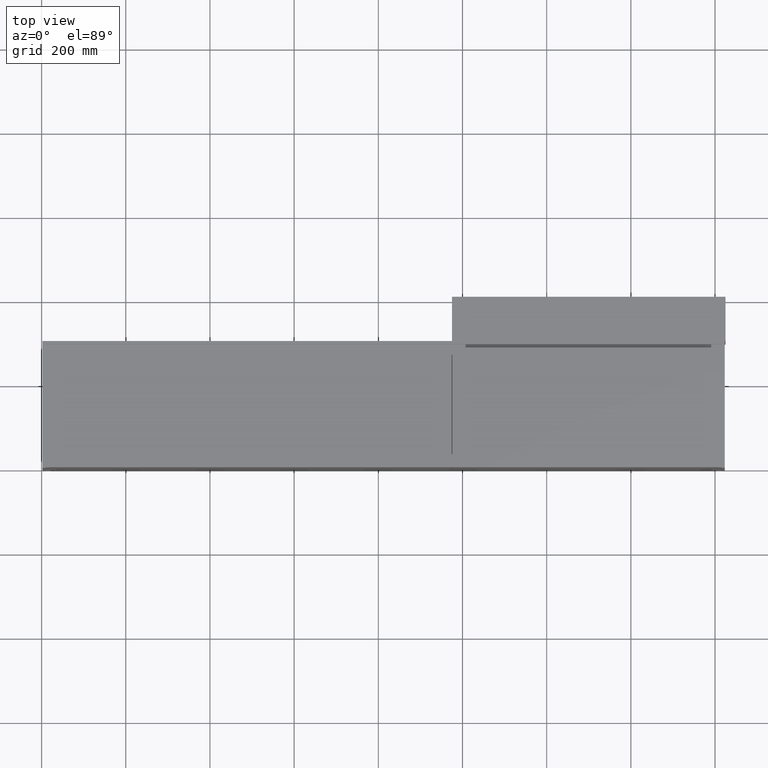
[diagram: clean part render]
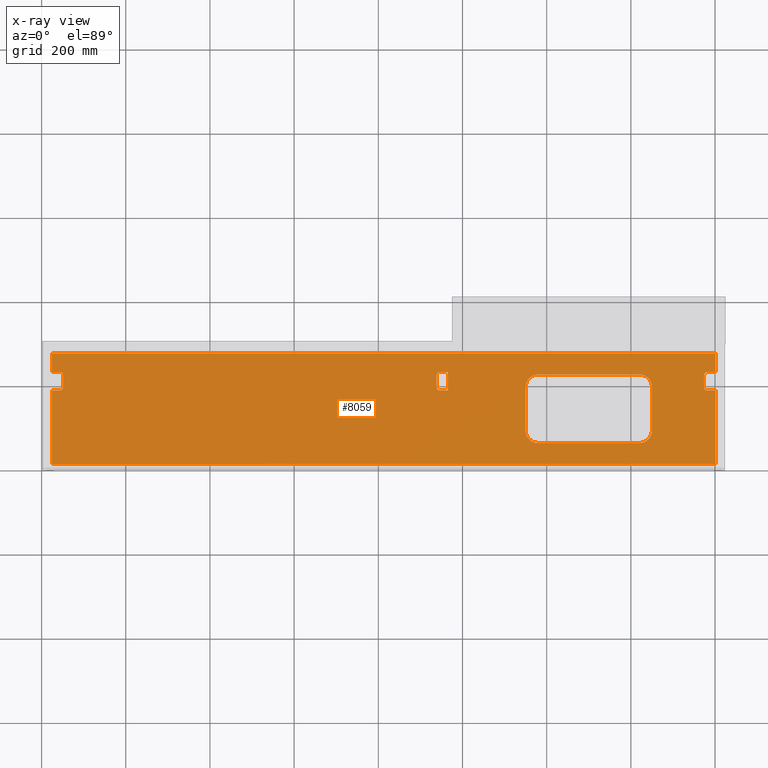
[diagram: x-ray — body ghosted, one internal face saturated and labeled with its STEP entity id]
A machine part, top view, then the same camera in x-ray: the body is ghosted and one INTERNAL B-rep face — a face not visible from any outside direction — is saturated and labeled: STEP entity #8059.
In plain terms, the highlighted planar face has unit normal (0, 0, -1).
Its self-contained STEP definition (entity closure, byte-faithful):
#95 = EDGE_CURVE ( 'NONE', #16124, #13416, #5217, .T. ) ;
#113 = VECTOR ( 'NONE', #11006, 1000.000000000000000 ) ;
#144 = EDGE_CURVE ( 'NONE', #7243, #5850, #11736, .T. ) ;
#260 = DIRECTION ( 'NONE',  ( 0.0000000000000000000, -1.000000000000000000, 0.0000000000000000000 ) ) ;
#395 = ORIENTED_EDGE ( 'NONE', *, *, #2169, .F. ) ;
#428 = EDGE_CURVE ( 'NONE', #7765, #14727, #7623, .T. ) ;
#462 = EDGE_CURVE ( 'NONE', #4347, #5850, #9162, .T. ) ;
#515 = DIRECTION ( 'NONE',  ( -1.000000000000000000, 0.0000000000000000000, 0.0000000000000000000 ) ) ;
#527 = CARTESIAN_POINT ( 'NONE',  ( 24.00000000000002132, 15.00000000000001421, -440.4999999999998295 ) ) ;
#577 = ORIENTED_EDGE ( 'NONE', *, *, #13520, .F. ) ;
#643 = EDGE_CURVE ( 'NONE', #14174, #15036, #2887, .T. ) ;
#682 = VERTEX_POINT ( 'NONE', #2091 ) ;
#734 = CARTESIAN_POINT ( 'NONE',  ( 1450.000000000000227, 95.00000000000000000, -440.4999999999998295 ) ) ;
#762 = CARTESIAN_POINT ( 'NONE',  ( 946.5000000000002274, 197.9999999999999432, -440.4999999999998295 ) ) ;
#771 = DIRECTION ( 'NONE',  ( -0.0000000000000000000, -1.000000000000000000, -0.0000000000000000000 ) ) ;
#907 = ORIENTED_EDGE ( 'NONE', *, *, #4710, .F. ) ;
#986 = ORIENTED_EDGE ( 'NONE', *, *, #15553, .F. ) ;
#1010 = LINE ( 'NONE', #6008, #113 ) ;
#1030 = ORIENTED_EDGE ( 'NONE', *, *, #12616, .F. ) ;
#1055 = DIRECTION ( 'NONE',  ( -1.000000000000000000, 0.0000000000000000000, -0.0000000000000000000 ) ) ;
#1277 = VECTOR ( 'NONE', #1740, 1000.000000000000000 ) ;
#1405 = VECTOR ( 'NONE', #260, 1000.000000000000000 ) ;
#1430 = VERTEX_POINT ( 'NONE', #9230 ) ;
#1539 = CARTESIAN_POINT ( 'NONE',  ( 24.00000000000002132, 278.0000000000000000, -440.4999999999998295 ) ) ;
#1546 = DIRECTION ( 'NONE',  ( -1.000000000000000000, 0.0000000000000000000, 0.0000000000000000000 ) ) ;
#1572 = CARTESIAN_POINT ( 'NONE',  ( 1582.000000000000000, 198.0000000000000568, -440.4999999999998295 ) ) ;
#1575 = CARTESIAN_POINT ( 'NONE',  ( 965.5000000000002274, 189.9999999999999432, -440.4999999999998295 ) ) ;
#1677 = ORIENTED_EDGE ( 'NONE', *, *, #144, .T. ) ;
#1727 = CIRCLE ( 'NONE', #10890, 30.00000000000002842 ) ;
#1740 = DIRECTION ( 'NONE',  ( -2.155772863349817962E-15, 1.000000000000000000, 0.0000000000000000000 ) ) ;
#1756 = EDGE_CURVE ( 'NONE', #2817, #682, #4958, .T. ) ;
#1764 = CARTESIAN_POINT ( 'NONE',  ( 1601.000000000000000, 234.0000000000000284, -440.4999999999998295 ) ) ;
#1866 = ORIENTED_EDGE ( 'NONE', *, *, #5435, .F. ) ;
#1965 = VERTEX_POINT ( 'NONE', #6912 ) ;
#2091 = CARTESIAN_POINT ( 'NONE',  ( 42.99999999999992895, 190.0000000000000568, -440.4999999999998295 ) ) ;
#2122 = EDGE_CURVE ( 'NONE', #2490, #14174, #15380, .T. ) ;
#2163 = VECTOR ( 'NONE', #3712, 1000.000000000000000 ) ;
#2169 = EDGE_CURVE ( 'NONE', #13436, #1965, #9475, .T. ) ;
#2175 = CARTESIAN_POINT ( 'NONE',  ( 42.99999999999992895, 198.0000000000000568, -440.4999999999998295 ) ) ;
#2178 = DIRECTION ( 'NONE',  ( -1.000000000000000000, -1.110223024625155436E-14, 0.0000000000000000000 ) ) ;
#2231 = CIRCLE ( 'NONE', #11371, 8.000000000000007105 ) ;
#2281 = DIRECTION ( 'NONE',  ( -0.0000000000000000000, -0.0000000000000000000, 1.000000000000000000 ) ) ;
#2290 = PLANE ( 'NONE',  #11293 ) ;
#2371 = DIRECTION ( 'NONE',  ( -1.000000000000000000, 0.0000000000000000000, 0.0000000000000000000 ) ) ;
#2411 = CARTESIAN_POINT ( 'NONE',  ( 1601.000000000000000, 234.0000000000000284, -440.4999999999998295 ) ) ;
#2490 = VERTEX_POINT ( 'NONE', #15521 ) ;
#2494 = LINE ( 'NONE', #7477, #5717 ) ;
#2524 = CARTESIAN_POINT ( 'NONE',  ( 24.00000000000002132, 15.00000000000001421, -440.4999999999998295 ) ) ;
#2751 = VECTOR ( 'NONE', #13452, 1000.000000000000000 ) ;
#2766 = CIRCLE ( 'NONE', #11907, 8.000000000000014211 ) ;
#2817 = VERTEX_POINT ( 'NONE', #4042 ) ;
#2887 = CIRCLE ( 'NONE', #8353, 30.00000000000002842 ) ;
#2952 = DIRECTION ( 'NONE',  ( -0.0000000000000000000, -1.000000000000000000, -0.0000000000000000000 ) ) ;
#2994 = LINE ( 'NONE', #7979, #15020 ) ;
#3027 = EDGE_CURVE ( 'NONE', #12477, #14032, #4213, .T. ) ;
#3047 = CARTESIAN_POINT ( 'NONE',  ( 1150.000000000000000, 95.00000000000004263, -440.4999999999998295 ) ) ;
#3068 = CARTESIAN_POINT ( 'NONE',  ( 1601.000000000000000, 15.00000000000001421, -440.4999999999998295 ) ) ;
#3136 = AXIS2_PLACEMENT_3D ( 'NONE', #5355, #10351, #15353 ) ;
#3181 = VERTEX_POINT ( 'NONE', #9273 ) ;
#3246 = DIRECTION ( 'NONE',  ( -0.0000000000000000000, -0.0000000000000000000, 1.000000000000000000 ) ) ;
#3254 = DIRECTION ( 'NONE',  ( 0.0000000000000000000, -1.000000000000000000, 0.0000000000000000000 ) ) ;
#3268 = VECTOR ( 'NONE', #9911, 1000.000000000000000 ) ;
#3324 = AXIS2_PLACEMENT_3D ( 'NONE', #13502, #2281, #7268 ) ;
#3363 = CARTESIAN_POINT ( 'NONE',  ( 1601.000000000000000, 1856.081164683669158, -440.4999999999998295 ) ) ;
#3463 = LINE ( 'NONE', #8449, #2751 ) ;
#3480 = CARTESIAN_POINT ( 'NONE',  ( 965.5000000000002274, 233.9999999999999432, -440.4999999999998295 ) ) ;
#3521 = FACE_BOUND ( 'NONE', #6159, .T. ) ;
#3712 = DIRECTION ( 'NONE',  ( -1.000000000000000000, 1.156482317317872465E-16, 0.0000000000000000000 ) ) ;
#4013 = EDGE_LOOP ( 'NONE', ( #8005, #11624, #907, #577, #5200, #7145, #11576, #8126 ) ) ;
#4022 = LINE ( 'NONE', #9004, #9392 ) ;
#4042 = CARTESIAN_POINT ( 'NONE',  ( 24.00000000000002132, 190.0000000000000568, -440.4999999999998295 ) ) ;
#4045 = VERTEX_POINT ( 'NONE', #2411 ) ;
#4077 = EDGE_LOOP ( 'NONE', ( #9221, #1030, #10611, #10472, #4734, #1866, #11704, #986, #10651, #10281, #13462, #1677, #9439, #4311, #12318, #4467 ) ) ;
#4162 = CARTESIAN_POINT ( 'NONE',  ( 1420.000000000000000, 65.00000000000000000, -440.4999999999998295 ) ) ;
#4213 = CIRCLE ( 'NONE', #11262, 8.000000000000007105 ) ;
#4290 = ORIENTED_EDGE ( 'NONE', *, *, #8583, .F. ) ;
#4311 = ORIENTED_EDGE ( 'NONE', *, *, #12157, .F. ) ;
#4347 = VERTEX_POINT ( 'NONE', #8342 ) ;
#4467 = ORIENTED_EDGE ( 'NONE', *, *, #10420, .F. ) ;
#4710 = EDGE_CURVE ( 'NONE', #7443, #9247, #4022, .T. ) ;
#4734 = ORIENTED_EDGE ( 'NONE', *, *, #11137, .T. ) ;
#4775 = CARTESIAN_POINT ( 'NONE',  ( 1574.000000000000000, 226.0000000000000284, -440.4999999999998295 ) ) ;
#4919 = CARTESIAN_POINT ( 'NONE',  ( 24.00000000000002132, 278.0000000000000000, -440.4999999999998295 ) ) ;
#4958 = LINE ( 'NONE', #9949, #11026 ) ;
#4982 = VERTEX_POINT ( 'NONE', #8081 ) ;
#5062 = EDGE_CURVE ( 'NONE', #5570, #11118, #5866, .T. ) ;
#5104 = VECTOR ( 'NONE', #6761, 1000.000000000000000 ) ;
#5147 = EDGE_CURVE ( 'NONE', #15036, #16124, #7964, .T. ) ;
#5153 = EDGE_CURVE ( 'NONE', #1430, #13436, #8339, .T. ) ;
#5200 = ORIENTED_EDGE ( 'NONE', *, *, #8993, .F. ) ;
#5217 = CIRCLE ( 'NONE', #3136, 30.00000000000002842 ) ;
#5270 = LINE ( 'NONE', #10269, #10258 ) ;
#5355 = CARTESIAN_POINT ( 'NONE',  ( 1420.000000000000000, 198.0000000000000284, -440.4999999999998295 ) ) ;
#5435 = EDGE_CURVE ( 'NONE', #14727, #11091, #2494, .T. ) ;
#5523 = DIRECTION ( 'NONE',  ( 1.000000000000000000, 0.0000000000000000000, 0.0000000000000000000 ) ) ;
#5536 = ORIENTED_EDGE ( 'NONE', *, *, #13954, .F. ) ;
#5570 = VERTEX_POINT ( 'NONE', #1575 ) ;
#5717 = VECTOR ( 'NONE', #12468, 1000.000000000000000 ) ;
#5748 = DIRECTION ( 'NONE',  ( -0.0000000000000000000, -0.0000000000000000000, 1.000000000000000000 ) ) ;
#5850 = VERTEX_POINT ( 'NONE', #3068 ) ;
#5866 = LINE ( 'NONE', #10868, #14621 ) ;
#5924 = CARTESIAN_POINT ( 'NONE',  ( 24.00000000000002132, 234.0000000000000284, -440.4999999999998295 ) ) ;
#6008 = CARTESIAN_POINT ( 'NONE',  ( 24.00000000000002132, 1856.081164683669158, -440.4999999999998295 ) ) ;
#6072 = LINE ( 'NONE', #11070, #15621 ) ;
#6159 = EDGE_LOOP ( 'NONE', ( #4290, #14131, #7171, #5536, #395, #15874 ) ) ;
#6276 = CARTESIAN_POINT ( 'NONE',  ( 50.99999999999993605, 198.0000000000000568, -440.4999999999998295 ) ) ;
#6480 = LINE ( 'NONE', #11470, #1405 ) ;
#6572 = DIRECTION ( 'NONE',  ( -0.0000000000000000000, -0.0000000000000000000, 1.000000000000000000 ) ) ;
#6742 = CARTESIAN_POINT ( 'NONE',  ( 946.5000000000002274, 225.9999999999999147, -440.4999999999998295 ) ) ;
#6761 = DIRECTION ( 'NONE',  ( -1.000000000000000000, 0.0000000000000000000, 0.0000000000000000000 ) ) ;
#6775 = LINE ( 'NONE', #11762, #7357 ) ;
#6912 = CARTESIAN_POINT ( 'NONE',  ( 938.5000000000002274, 197.9999999999999432, -440.4999999999998295 ) ) ;
#6964 = AXIS2_PLACEMENT_3D ( 'NONE', #762, #5748, #10752 ) ;
#7145 = ORIENTED_EDGE ( 'NONE', *, *, #95, .F. ) ;
#7160 = DIRECTION ( 'NONE',  ( -0.0000000000000000000, -0.0000000000000000000, 1.000000000000000000 ) ) ;
#7171 = ORIENTED_EDGE ( 'NONE', *, *, #10970, .F. ) ;
#7243 = VERTEX_POINT ( 'NONE', #2524 ) ;
#7268 = DIRECTION ( 'NONE',  ( -1.000000000000000000, 0.0000000000000000000, 0.0000000000000000000 ) ) ;
#7274 = CARTESIAN_POINT ( 'NONE',  ( 24.00000000000002132, 1856.081164683669158, -440.4999999999998295 ) ) ;
#7357 = VECTOR ( 'NONE', #771, 1000.000000000000000 ) ;
#7403 = EDGE_CURVE ( 'NONE', #2817, #7243, #6775, .T. ) ;
#7443 = VERTEX_POINT ( 'NONE', #10013 ) ;
#7477 = CARTESIAN_POINT ( 'NONE',  ( 24.00000000000002132, 234.0000000000000284, -440.4999999999998295 ) ) ;
#7493 = CARTESIAN_POINT ( 'NONE',  ( 1582.000000000000000, 234.0000000000000284, -440.4999999999998295 ) ) ;
#7623 = CIRCLE ( 'NONE', #11814, 8.000000000000007105 ) ;
#7765 = VERTEX_POINT ( 'NONE', #9912 ) ;
#7773 = CARTESIAN_POINT ( 'NONE',  ( 42.99999999999992895, 226.0000000000000284, -440.4999999999998295 ) ) ;
#7964 = LINE ( 'NONE', #12965, #1277 ) ;
#7979 = CARTESIAN_POINT ( 'NONE',  ( 965.5000000000002274, 189.9999999999999432, -440.4999999999998295 ) ) ;
#8005 = ORIENTED_EDGE ( 'NONE', *, *, #2122, .F. ) ;
#8059 = ADVANCED_FACE ( 'NONE', ( #3521, #8504, #13509 ), #2290, .F. ) ;
#8081 = CARTESIAN_POINT ( 'NONE',  ( 1582.000000000000000, 190.0000000000000568, -440.4999999999998295 ) ) ;
#8126 = ORIENTED_EDGE ( 'NONE', *, *, #643, .F. ) ;
#8233 = DIRECTION ( 'NONE',  ( -1.000000000000000000, 0.0000000000000000000, 0.0000000000000000000 ) ) ;
#8339 = CIRCLE ( 'NONE', #15407, 8.000000000000007105 ) ;
#8342 = CARTESIAN_POINT ( 'NONE',  ( 1601.000000000000000, 190.0000000000000568, -440.4999999999998295 ) ) ;
#8351 = DIRECTION ( 'NONE',  ( -0.0000000000000000000, -1.000000000000000000, -0.0000000000000000000 ) ) ;
#8353 = AXIS2_PLACEMENT_3D ( 'NONE', #14462, #3246, #8233 ) ;
#8394 = CARTESIAN_POINT ( 'NONE',  ( 1180.000000000000227, 198.0000000000000568, -440.4999999999998295 ) ) ;
#8449 = CARTESIAN_POINT ( 'NONE',  ( 1601.000000000000000, 190.0000000000000568, -440.4999999999998295 ) ) ;
#8504 = FACE_BOUND ( 'NONE', #4013, .T. ) ;
#8533 = VERTEX_POINT ( 'NONE', #15103 ) ;
#8583 = EDGE_CURVE ( 'NONE', #11118, #1430, #5270, .T. ) ;
#8589 = CARTESIAN_POINT ( 'NONE',  ( 1582.000000000000000, 226.0000000000000284, -440.4999999999998295 ) ) ;
#8798 = VECTOR ( 'NONE', #8351, 1000.000000000000000 ) ;
#8993 = EDGE_CURVE ( 'NONE', #13416, #13290, #9922, .T. ) ;
#9004 = CARTESIAN_POINT ( 'NONE',  ( 1150.000000000000227, 198.0000000000000568, -440.4999999999998295 ) ) ;
#9146 = DIRECTION ( 'NONE',  ( 1.000000000000000000, -1.156482317317872465E-16, 0.0000000000000000000 ) ) ;
#9162 = LINE ( 'NONE', #14165, #9698 ) ;
#9221 = ORIENTED_EDGE ( 'NONE', *, *, #3027, .F. ) ;
#9230 = CARTESIAN_POINT ( 'NONE',  ( 946.5000000000002274, 233.9999999999999432, -440.4999999999998295 ) ) ;
#9247 = VERTEX_POINT ( 'NONE', #3047 ) ;
#9273 = CARTESIAN_POINT ( 'NONE',  ( 1574.000000000000000, 198.0000000000000568, -440.4999999999998295 ) ) ;
#9392 = VECTOR ( 'NONE', #14005, 1000.000000000000000 ) ;
#9439 = ORIENTED_EDGE ( 'NONE', *, *, #462, .F. ) ;
#9475 = LINE ( 'NONE', #14470, #12559 ) ;
#9486 = VERTEX_POINT ( 'NONE', #6276 ) ;
#9698 = VECTOR ( 'NONE', #2952, 1000.000000000000000 ) ;
#9911 = DIRECTION ( 'NONE',  ( 1.000000000000000000, -0.0000000000000000000, 0.0000000000000000000 ) ) ;
#9912 = CARTESIAN_POINT ( 'NONE',  ( 50.99999999999993605, 226.0000000000000284, -440.4999999999998295 ) ) ;
#9922 = LINE ( 'NONE', #14924, #2163 ) ;
#9949 = CARTESIAN_POINT ( 'NONE',  ( 24.00000000000002132, 190.0000000000000568, -440.4999999999998295 ) ) ;
#10013 = CARTESIAN_POINT ( 'NONE',  ( 1150.000000000000227, 198.0000000000001705, -440.4999999999998295 ) ) ;
#10160 = CARTESIAN_POINT ( 'NONE',  ( 1420.000000000000000, 64.99999999999987210, -440.4999999999998295 ) ) ;
#10258 = VECTOR ( 'NONE', #15263, 1000.000000000000000 ) ;
#10269 = CARTESIAN_POINT ( 'NONE',  ( 965.5000000000002274, 233.9999999999999432, -440.4999999999998295 ) ) ;
#10281 = ORIENTED_EDGE ( 'NONE', *, *, #1756, .F. ) ;
#10351 = DIRECTION ( 'NONE',  ( -0.0000000000000000000, -0.0000000000000000000, 1.000000000000000000 ) ) ;
#10380 = CIRCLE ( 'NONE', #3324, 30.00000000000002842 ) ;
#10420 = EDGE_CURVE ( 'NONE', #14032, #3181, #6480, .T. ) ;
#10472 = ORIENTED_EDGE ( 'NONE', *, *, #11621, .F. ) ;
#10611 = ORIENTED_EDGE ( 'NONE', *, *, #14413, .F. ) ;
#10651 = ORIENTED_EDGE ( 'NONE', *, *, #12762, .F. ) ;
#10752 = DIRECTION ( 'NONE',  ( -1.000000000000000000, 0.0000000000000000000, 0.0000000000000000000 ) ) ;
#10868 = CARTESIAN_POINT ( 'NONE',  ( 965.5000000000002274, 233.9999999999999432, -440.4999999999998295 ) ) ;
#10890 = AXIS2_PLACEMENT_3D ( 'NONE', #8394, #13400, #2178 ) ;
#10970 = EDGE_CURVE ( 'NONE', #8533, #5570, #2994, .T. ) ;
#11006 = DIRECTION ( 'NONE',  ( -0.0000000000000000000, -1.000000000000000000, -0.0000000000000000000 ) ) ;
#11026 = VECTOR ( 'NONE', #14951, 1000.000000000000000 ) ;
#11070 = CARTESIAN_POINT ( 'NONE',  ( 50.99999999999993605, 226.0000000000000284, -440.4999999999998295 ) ) ;
#11091 = VERTEX_POINT ( 'NONE', #5924 ) ;
#11118 = VERTEX_POINT ( 'NONE', #3480 ) ;
#11137 = EDGE_CURVE ( 'NONE', #14666, #11091, #1010, .T. ) ;
#11262 = AXIS2_PLACEMENT_3D ( 'NONE', #8589, #13593, #2371 ) ;
#11293 = AXIS2_PLACEMENT_3D ( 'NONE', #7274, #12265, #1055 ) ;
#11371 = AXIS2_PLACEMENT_3D ( 'NONE', #1572, #6572, #11561 ) ;
#11470 = CARTESIAN_POINT ( 'NONE',  ( 1574.000000000000000, 226.0000000000000284, -440.4999999999998295 ) ) ;
#11561 = DIRECTION ( 'NONE',  ( -1.000000000000000000, 0.0000000000000000000, 0.0000000000000000000 ) ) ;
#11576 = ORIENTED_EDGE ( 'NONE', *, *, #5147, .F. ) ;
#11604 = CARTESIAN_POINT ( 'NONE',  ( 42.99999999999992895, 234.0000000000000284, -440.4999999999998295 ) ) ;
#11621 = EDGE_CURVE ( 'NONE', #14666, #12689, #16135, .T. ) ;
#11624 = ORIENTED_EDGE ( 'NONE', *, *, #15022, .F. ) ;
#11704 = ORIENTED_EDGE ( 'NONE', *, *, #428, .F. ) ;
#11723 = DIRECTION ( 'NONE',  ( -0.0000000000000000000, -0.0000000000000000000, 1.000000000000000000 ) ) ;
#11736 = LINE ( 'NONE', #527, #13069 ) ;
#11762 = CARTESIAN_POINT ( 'NONE',  ( 24.00000000000002132, 1856.081164683669158, -440.4999999999998295 ) ) ;
#11814 = AXIS2_PLACEMENT_3D ( 'NONE', #7773, #12760, #1546 ) ;
#11907 = AXIS2_PLACEMENT_3D ( 'NONE', #2175, #7160, #12150 ) ;
#12017 = EDGE_CURVE ( 'NONE', #3181, #4982, #2231, .T. ) ;
#12150 = DIRECTION ( 'NONE',  ( -1.000000000000000000, 0.0000000000000000000, 0.0000000000000000000 ) ) ;
#12157 = EDGE_CURVE ( 'NONE', #4982, #4347, #3463, .T. ) ;
#12265 = DIRECTION ( 'NONE',  ( 0.0000000000000000000, 0.0000000000000000000, -1.000000000000000000 ) ) ;
#12318 = ORIENTED_EDGE ( 'NONE', *, *, #12017, .F. ) ;
#12468 = DIRECTION ( 'NONE',  ( -1.000000000000000000, 0.0000000000000000000, 0.0000000000000000000 ) ) ;
#12477 = VERTEX_POINT ( 'NONE', #7493 ) ;
#12559 = VECTOR ( 'NONE', #3254, 1000.000000000000000 ) ;
#12616 = EDGE_CURVE ( 'NONE', #4045, #12477, #12989, .T. ) ;
#12689 = VERTEX_POINT ( 'NONE', #14454 ) ;
#12760 = DIRECTION ( 'NONE',  ( -0.0000000000000000000, -0.0000000000000000000, 1.000000000000000000 ) ) ;
#12762 = EDGE_CURVE ( 'NONE', #682, #9486, #2766, .T. ) ;
#12965 = CARTESIAN_POINT ( 'NONE',  ( 1450.000000000000000, 198.0000000000000284, -440.4999999999998295 ) ) ;
#12980 = DIRECTION ( 'NONE',  ( 1.000000000000000000, 0.0000000000000000000, 0.0000000000000000000 ) ) ;
#12989 = LINE ( 'NONE', #1764, #5104 ) ;
#13029 = CARTESIAN_POINT ( 'NONE',  ( 1180.000000000000227, 228.0000000000000853, -440.4999999999998295 ) ) ;
#13069 = VECTOR ( 'NONE', #5523, 1000.000000000000000 ) ;
#13290 = VERTEX_POINT ( 'NONE', #13029 ) ;
#13400 = DIRECTION ( 'NONE',  ( -0.0000000000000000000, -0.0000000000000000000, 1.000000000000000000 ) ) ;
#13416 = VERTEX_POINT ( 'NONE', #15803 ) ;
#13436 = VERTEX_POINT ( 'NONE', #14659 ) ;
#13452 = DIRECTION ( 'NONE',  ( 1.000000000000000000, 0.0000000000000000000, 0.0000000000000000000 ) ) ;
#13462 = ORIENTED_EDGE ( 'NONE', *, *, #7403, .T. ) ;
#13502 = CARTESIAN_POINT ( 'NONE',  ( 1180.000000000000227, 95.00000000000002842, -440.4999999999998295 ) ) ;
#13509 = FACE_OUTER_BOUND ( 'NONE', #4077, .T. ) ;
#13520 = EDGE_CURVE ( 'NONE', #13290, #7443, #1727, .T. ) ;
#13593 = DIRECTION ( 'NONE',  ( -0.0000000000000000000, -0.0000000000000000000, 1.000000000000000000 ) ) ;
#13954 = EDGE_CURVE ( 'NONE', #1965, #8533, #14027, .T. ) ;
#14005 = DIRECTION ( 'NONE',  ( -2.155772863349817962E-15, -1.000000000000000000, 0.0000000000000000000 ) ) ;
#14027 = CIRCLE ( 'NONE', #6964, 8.000000000000007105 ) ;
#14032 = VERTEX_POINT ( 'NONE', #4775 ) ;
#14114 = VECTOR ( 'NONE', #9146, 1000.000000000000000 ) ;
#14131 = ORIENTED_EDGE ( 'NONE', *, *, #5062, .F. ) ;
#14165 = CARTESIAN_POINT ( 'NONE',  ( 1601.000000000000000, 1856.081164683669158, -440.4999999999998295 ) ) ;
#14174 = VERTEX_POINT ( 'NONE', #10160 ) ;
#14413 = EDGE_CURVE ( 'NONE', #12689, #4045, #14580, .T. ) ;
#14454 = CARTESIAN_POINT ( 'NONE',  ( 1601.000000000000000, 278.0000000000000000, -440.4999999999998295 ) ) ;
#14462 = CARTESIAN_POINT ( 'NONE',  ( 1420.000000000000000, 95.00000000000000000, -440.4999999999998295 ) ) ;
#14470 = CARTESIAN_POINT ( 'NONE',  ( 938.5000000000002274, 225.9999999999999147, -440.4999999999998295 ) ) ;
#14580 = LINE ( 'NONE', #3363, #8798 ) ;
#14621 = VECTOR ( 'NONE', #15861, 1000.000000000000000 ) ;
#14659 = CARTESIAN_POINT ( 'NONE',  ( 938.5000000000002274, 225.9999999999999147, -440.4999999999998295 ) ) ;
#14666 = VERTEX_POINT ( 'NONE', #1539 ) ;
#14727 = VERTEX_POINT ( 'NONE', #11604 ) ;
#14924 = CARTESIAN_POINT ( 'NONE',  ( 1420.000000000000000, 228.0000000000000284, -440.4999999999998295 ) ) ;
#14951 = DIRECTION ( 'NONE',  ( 1.000000000000000000, -1.460819769243633442E-15, 0.0000000000000000000 ) ) ;
#15020 = VECTOR ( 'NONE', #12980, 1000.000000000000000 ) ;
#15022 = EDGE_CURVE ( 'NONE', #9247, #2490, #10380, .T. ) ;
#15036 = VERTEX_POINT ( 'NONE', #734 ) ;
#15103 = CARTESIAN_POINT ( 'NONE',  ( 946.5000000000002274, 189.9999999999999432, -440.4999999999998295 ) ) ;
#15211 = CARTESIAN_POINT ( 'NONE',  ( 1450.000000000000000, 198.0000000000000284, -440.4999999999998295 ) ) ;
#15263 = DIRECTION ( 'NONE',  ( -1.000000000000000000, 0.0000000000000000000, 0.0000000000000000000 ) ) ;
#15353 = DIRECTION ( 'NONE',  ( -1.000000000000000000, 0.0000000000000000000, 0.0000000000000000000 ) ) ;
#15380 = LINE ( 'NONE', #4162, #14114 ) ;
#15407 = AXIS2_PLACEMENT_3D ( 'NONE', #6742, #11723, #515 ) ;
#15521 = CARTESIAN_POINT ( 'NONE',  ( 1180.000000000000227, 65.00000000000002842, -440.4999999999998295 ) ) ;
#15553 = EDGE_CURVE ( 'NONE', #9486, #7765, #6072, .T. ) ;
#15621 = VECTOR ( 'NONE', #16061, 1000.000000000000000 ) ;
#15803 = CARTESIAN_POINT ( 'NONE',  ( 1420.000000000000000, 228.0000000000000284, -440.4999999999998295 ) ) ;
#15861 = DIRECTION ( 'NONE',  ( 0.0000000000000000000, 1.000000000000000000, 0.0000000000000000000 ) ) ;
#15874 = ORIENTED_EDGE ( 'NONE', *, *, #5153, .F. ) ;
#16061 = DIRECTION ( 'NONE',  ( 4.956352788505169184E-16, 1.000000000000000000, 0.0000000000000000000 ) ) ;
#16124 = VERTEX_POINT ( 'NONE', #15211 ) ;
#16135 = LINE ( 'NONE', #4919, #3268 ) ;